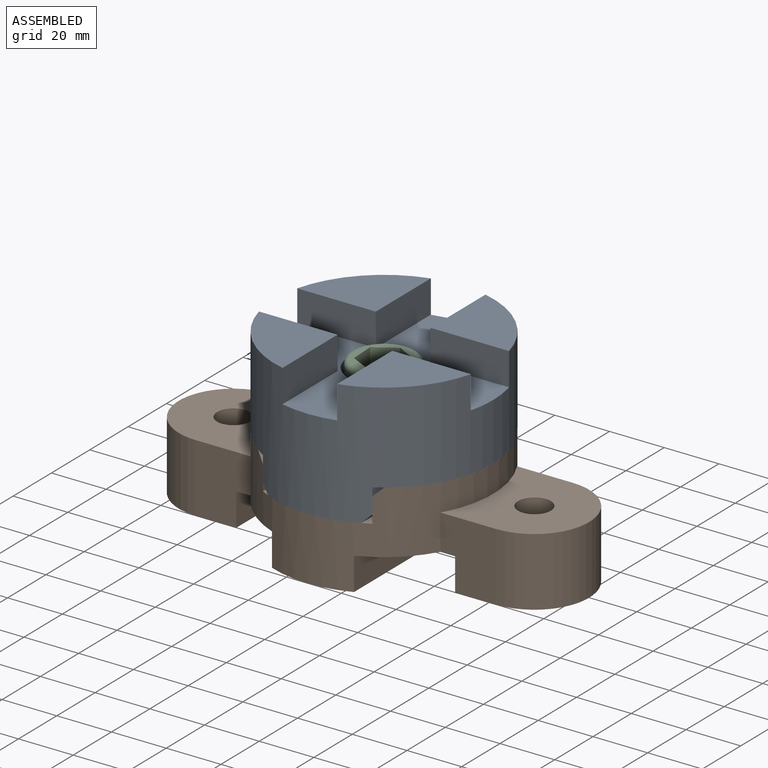
[diagram: assembled view]
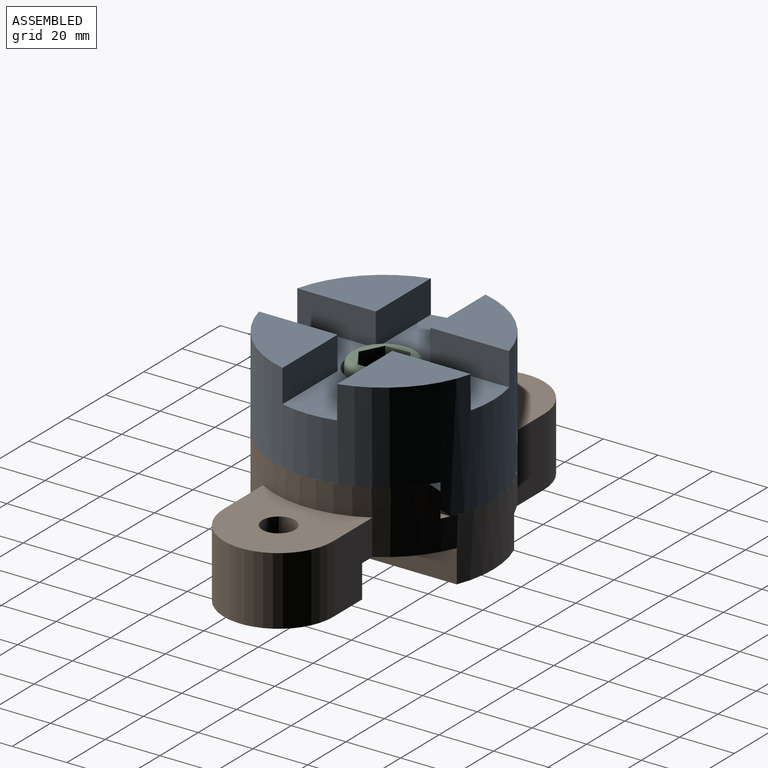
[diagram: assembled view, second angle]
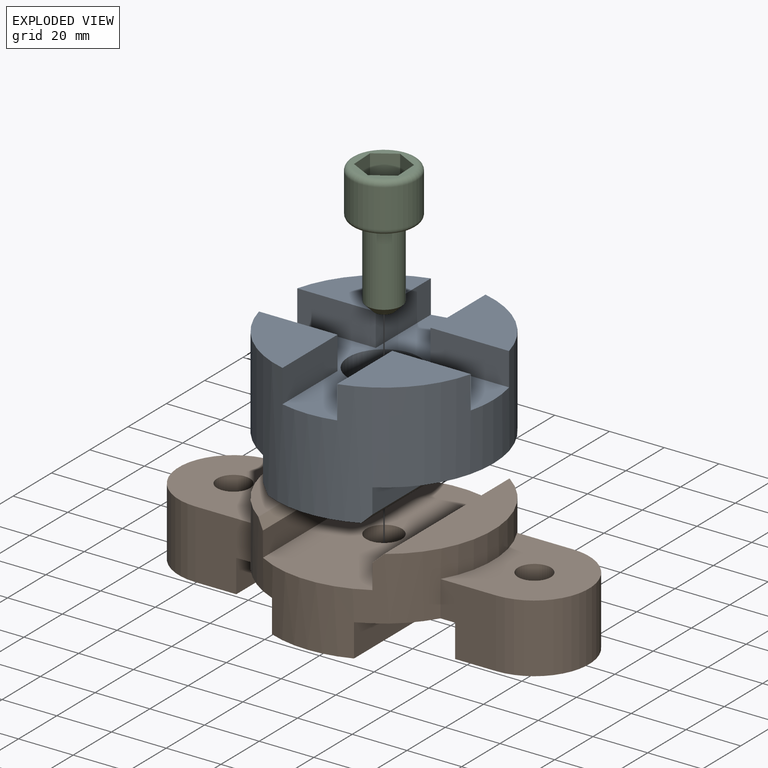
[diagram: exploded view]
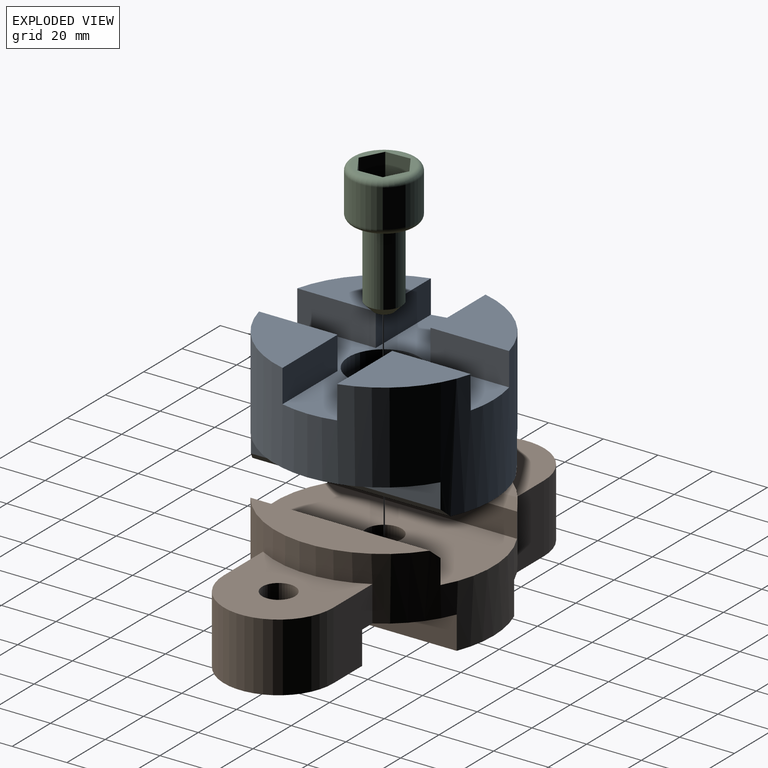
[diagram: exploded view, second angle]
ASSEMBLY  parts=3 mates=2
PART A: 24 faces, bbox 80x80x45 mm
  f0: plane 80x34mm, normal (0,0,-1), area 2503mm2, adj f5,f7,f22,f23
  f1: cylinder r=13mm len=26mm, axis (0,0,-1), area 1225.2mm2, adj f8,f17
  f2: plane 28.73x28.73mm, normal (0,0,1), area 565.1mm2, adj f5,f10,f11
  f3: plane 28.73x28.73mm, normal (0,0,1), area 565.1mm2, adj f5,f14,f15
  f4: plane 28.73x28.73mm, normal (0,0,1), area 565.1mm2, adj f5,f9,f16
  f5: cylinder r=40mm len=80mm, axis (0,0,-1), area 8308.4mm2, adj f0,f2,f3,f4,f6,f9,f10,f11
  f6: plane 28.73x28.73mm, normal (0,0,1), area 565.1mm2, adj f5,f12,f13
  f7: cylinder r=6.5mm len=18mm, axis (0,0,-1), area 735.1mm2, adj f0,f8
  f8: plane 26x26mm, normal (0,0,1), area 398.2mm2, adj f1,f7
  f9: plane 28.73x12mm, normal (-1,0,0), area 344.8mm2, adj f4,f5,f16,f17
  f10: plane 28.73x12mm, normal (1,0,0), area 344.8mm2, adj f2,f5,f11,f17
  f11: plane 28.73x12mm, normal (0,-1,0), area 344.8mm2, adj f2,f5,f10,f17
  f12: plane 28.73x12mm, normal (0,1,0), area 344.8mm2, adj f5,f6,f13,f17
  f13: plane 28.73x12mm, normal (1,0,0), area 344.8mm2, adj f5,f6,f12,f17
  f14: plane 28.73x12mm, normal (-1,0,0), area 344.8mm2, adj f3,f5,f15,f17
  f15: plane 28.73x12mm, normal (0,1,0), area 344.8mm2, adj f3,f5,f14,f17
  f16: plane 28.73x12mm, normal (0,-1,0), area 344.8mm2, adj f4,f5,f9,f17
  f17: plane 80x80mm, normal (0,0,1), area 2235.4mm2, adj f1,f5,f9,f10,f11,f12,f13,f14
  f18: plane 69.28x9mm, normal (-1,0,0), area 623.5mm2, adj f5,f19,f22
  f19: plane 69.28x20mm, normal (0,0,-1), area 982.7mm2, adj f5,f18
  f20: plane 69.28x9mm, normal (1,0,0), area 623.5mm2, adj f5,f21,f23
  f21: plane 69.28x20mm, normal (0,0,-1), area 982.7mm2, adj f5,f20
  f22: plane 72.42x3mm, normal (-0.71,0,-0.71), area 300.8mm2, adj f0,f5,f18
  f23: plane 72.42x3mm, normal (0.71,0,-0.71), area 300.8mm2, adj f0,f5,f20
PART B: 28 faces, bbox 150x80x35 mm
  f0: cylinder r=40mm len=80mm, axis (0,0,-1), area 4403mm2, adj f1,f4,f5,f7,f8,f9,f10,f13
  f1: plane 80x30mm, normal (0,0,-1), area 2209.8mm2, adj f0,f6,f20,f23
  f2: plane 40x35mm, normal (0,0,-1), area 1115.2mm2, adj f9,f10,f11,f12,f24
  f3: plane 40x35mm, normal (0,0,-1), area 1115.2mm2, adj f4,f5,f14,f15,f21
  f4: plane 25x20.36mm, normal (0,1,0), area 444.7mm2, adj f0,f3,f14,f16,f21,f22
  f5: plane 25x20.36mm, normal (0,-1,0), area 444.7mm2, adj f0,f3,f14,f16,f21,f22
  f6: cylinder r=6.5mm len=23mm, axis (0,0,-1), area 939.3mm2, adj f1,f19
  f7: plane 65.45x17mm, normal (0,0,1), area 780.4mm2, adj f0,f27
  f8: plane 65.45x17mm, normal (0,0,1), area 780.4mm2, adj f0,f26
  f9: plane 25x20.36mm, normal (0,1,0), area 444.7mm2, adj f0,f2,f11,f13,f24,f25
  f10: plane 25x20.36mm, normal (0,-1,0), area 444.7mm2, adj f0,f2,f11,f13,f24,f25
  f11: cylinder r=20mm len=40mm, axis (0,0,-1), area 1570.8mm2, adj f2,f9,f10,f13
  f12: cylinder r=6mm len=25mm, axis (0,0,-1), area 942.5mm2, adj f2,f13
  f13: plane 40.36x40mm, normal (0,0,1), area 1184.6mm2, adj f0,f9,f10,f11,f12
  f14: cylinder r=20mm len=40mm, axis (0,0,-1), area 1570.8mm2, adj f3,f4,f5,f16
  f15: cylinder r=6mm len=25mm, axis (0,0,-1), area 942.5mm2, adj f3,f16
  f16: plane 40.36x40mm, normal (0,0,1), area 1184.6mm2, adj f0,f4,f5,f14,f15
  f17: plane 69.28x9mm, normal (-1,0,0), area 623.5mm2, adj f0,f19,f26
  f18: plane 69.28x9mm, normal (1,0,0), area 623.5mm2, adj f0,f19,f27
  f19: plane 80x40mm, normal (0,0,1), area 2928.4mm2, adj f0,f6,f17,f18
  f20: plane 74.16x12mm, normal (-1,0,0), area 889.9mm2, adj f0,f1,f22
  f21: plane 40x12mm, normal (1,0,0), area 480mm2, adj f3,f4,f5,f22
  f22: plane 74.16x25mm, normal (0,0,-1), area 1411.4mm2, adj f0,f4,f5,f20,f21
  f23: plane 74.16x12mm, normal (1,0,0), area 889.9mm2, adj f0,f1,f25
  f24: plane 40x12mm, normal (-1,0,0), area 480mm2, adj f2,f9,f10,f25
  f25: plane 74.16x25mm, normal (0,0,-1), area 1411.4mm2, adj f0,f9,f10,f23,f24
  f26: plane 69.28x3mm, normal (-0.71,0,0.71), area 286.1mm2, adj f0,f8,f17
  f27: plane 69.28x3mm, normal (0.71,0,0.71), area 286.1mm2, adj f0,f7,f18
PART C: 16 faces, bbox 26x26x48 mm
  f0: plane 20x20mm, normal (0,0,1), area 103.7mm2, adj f3,f4,f5,f6,f7,f8,f13
  f1: cylinder r=12mm len=24mm, axis (0,0,-1), area 1055.6mm2, adj f12,f13
  f2: plane 20x20mm, normal (0,0,-1), area 160.2mm2, adj f12,f14
  f3: plane 13x7.39mm, normal (-0.57,-0.82,0), area 117mm2, adj f0,f4,f8,f9
  f4: plane 13x8.15mm, normal (0.43,-0.91,0), area 117mm2, adj f0,f3,f5,f9
  f5: plane 13x8.97mm, normal (1,-0.08,0), area 117mm2, adj f0,f4,f6,f9
  f6: plane 13x7.39mm, normal (0.57,0.82,0), area 117mm2, adj f0,f5,f7,f9
  f7: plane 13x8.15mm, normal (-0.43,0.91,0), area 117mm2, adj f0,f6,f8,f9
  f8: plane 13x8.97mm, normal (-1,0.08,0), area 117mm2, adj f0,f3,f7,f9
  f9: plane 17.94x16.29mm, normal (0,0,1), area 210.4mm2, adj f3,f4,f5,f6,f7,f8
  f10: cylinder r=6.5mm len=26.5mm, axis (0,0,1), area 1082.3mm2, adj f14,f15
  f11: plane 7x7mm, normal (0,0,-1), area 38.5mm2, adj f15
  f12: torus R=10mm, axis (0,0,1), area 222.5mm2, adj f1,f2
  f13: torus R=10mm, axis (0,0,1), area 222.5mm2, adj f0,f1
  f14: torus R=7mm, axis (0,0,1), area 33mm2, adj f2,f10
  f15: cone r=3.5mm half-angle=45deg, axis (0,0,1), area 133.3mm2, adj f10,f11
PLACE A t=(18.03,36.53,39.14)mm
PLACE B t=(18.03,36.53,16.14)mm fixed
PLACE C rot(axis=(0,0,-1),52.5deg) t=(18.03,36.53,57.14)mm
MATE revolute C.f1 <-> A.f1  axis (0,0,-1) through (18.03,36.53,57.14)mm
MATE fastened A.f7 <-> B.f6  axis (0,0,-1) through (18.03,36.53,39.14)mm
